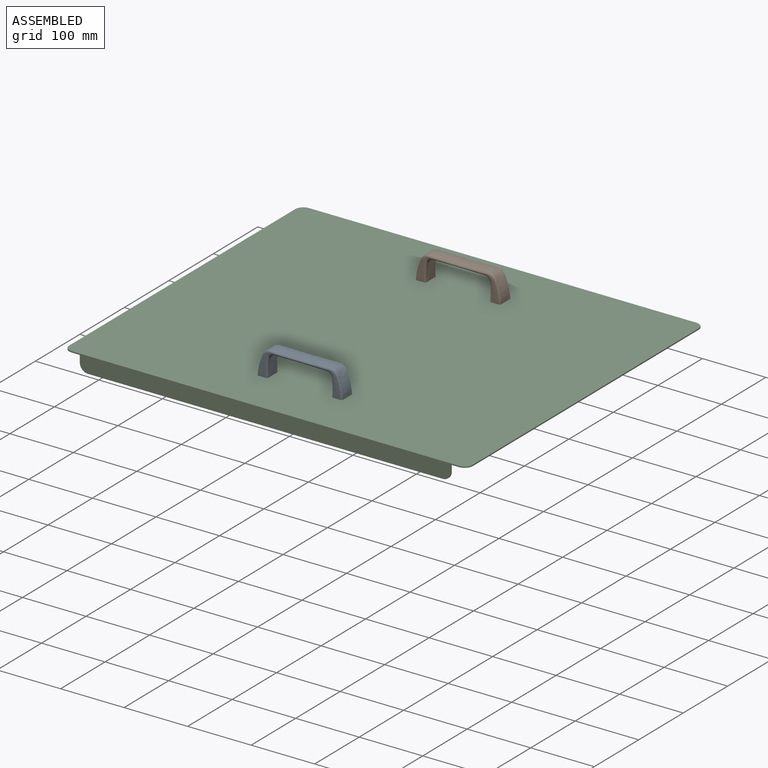
[diagram: assembled view]
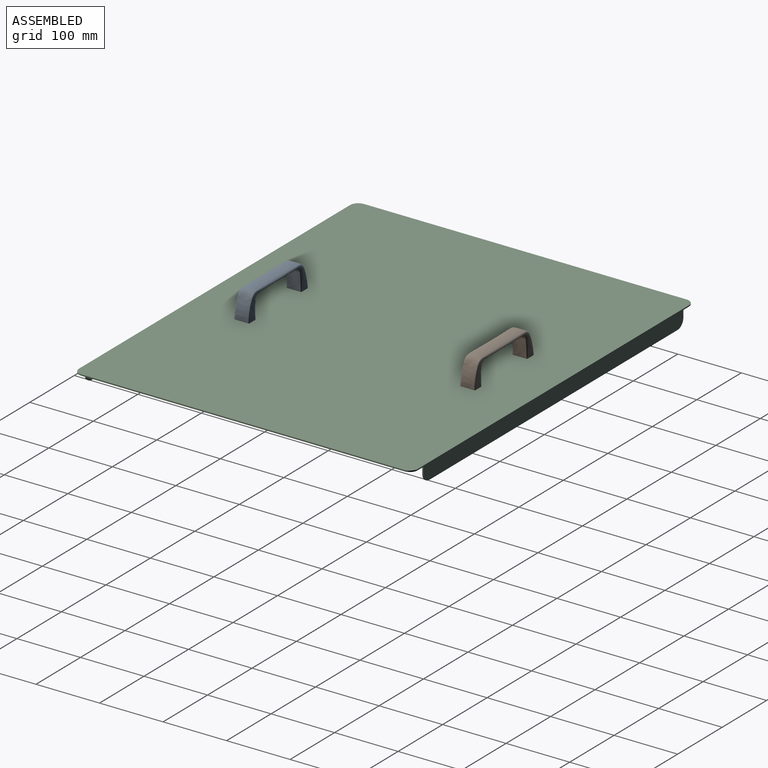
[diagram: assembled view, second angle]
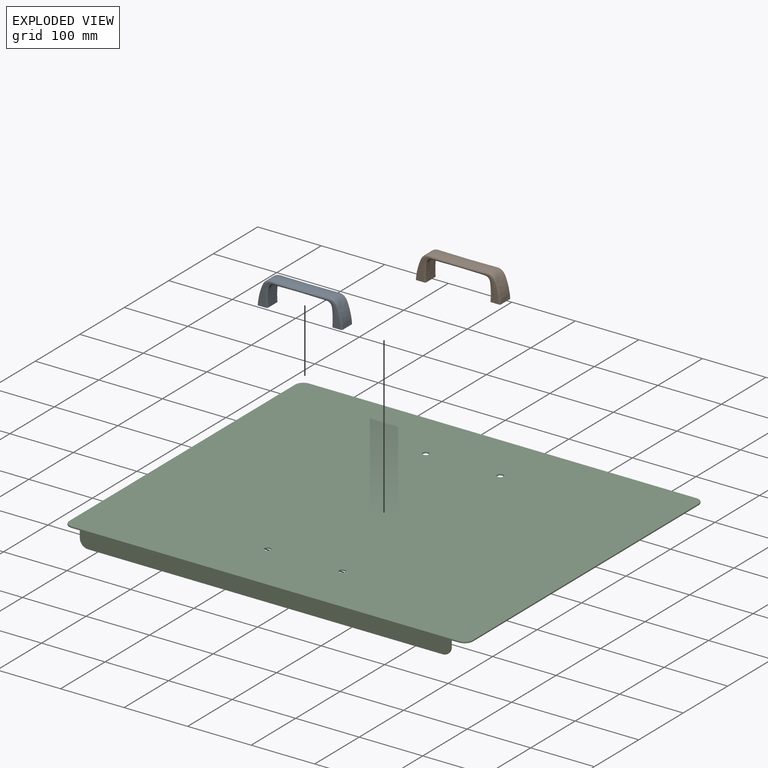
[diagram: exploded view]
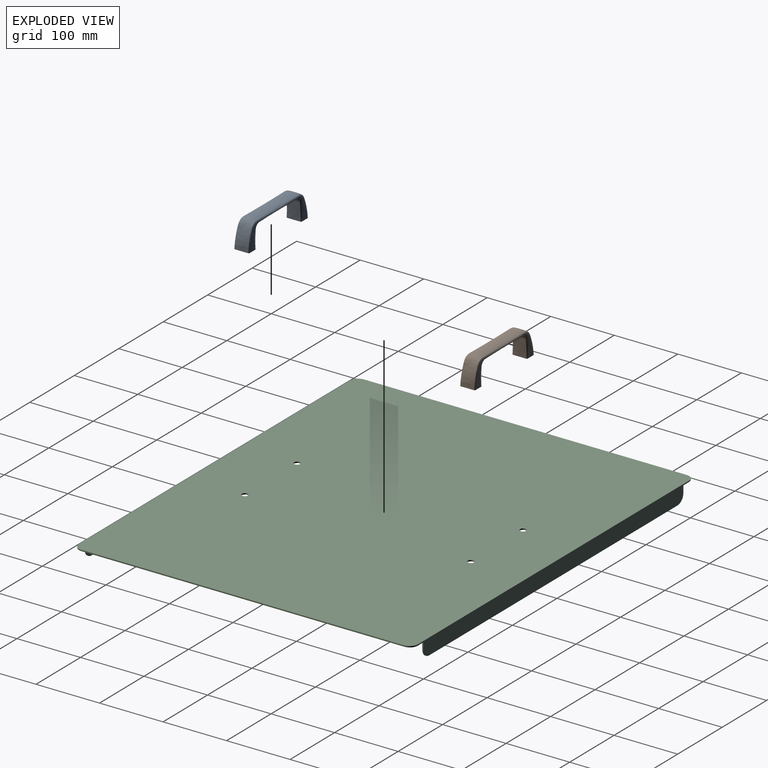
[diagram: exploded view, second angle]
ASSEMBLY  parts=3 mates=2
PART A: 16 faces, bbox 133.9x24.4x42.2 mm
  f0: cone r=3.97mm half-angle=45deg, axis (0,0,-1), area 14.8mm2, adj f5,f9,f13,f14,f15
  f1: cone r=3.97mm half-angle=45deg, axis (0,0,-1), area 14.8mm2, adj f4,f8,f10,f11,f12
  f2: bspline ~66.68x41.28mm, area 5306.5mm2, adj f3,f9
  f3: bspline ~66.68x41.28mm, area 5306.5mm2, adj f2,f8
  f4: cylinder r=3.97mm len=7.94mm, axis (0,0,-1), area 24.7mm2, adj f1,f7,f8,f10,f12
  f5: cylinder r=3.97mm len=7.94mm, axis (0,0,-1), area 24.7mm2, adj f0,f6,f9,f13,f15
  f6: plane 7.63x7.6mm, normal (0,0,-1), area 39mm2, adj f5,f13,f14,f15
  f7: plane 7.63x7.6mm, normal (0,0,-1), area 39mm2, adj f4,f10,f11,f12
  f8: plane 24x16.06mm, normal (0,0,-1), area 326.4mm2, adj f1,f3,f4
  f9: plane 24x16.06mm, normal (0,0,-1), area 326.4mm2, adj f0,f2,f5
  f10: bspline ~8.64x7.94mm, area 124.2mm2, adj f1,f4,f7,f11
  f11: cylinder r=3.05mm len=7.02mm, axis (0,0,1), area 16.6mm2, adj f1,f7,f10,f12
  f12: bspline ~8.82x7.94mm, area 122.2mm2, adj f1,f4,f7,f11
  f13: bspline ~8.64x7.94mm, area 124.2mm2, adj f0,f5,f6,f14
  f14: cylinder r=3.05mm len=7.02mm, axis (0,0,1), area 16.6mm2, adj f0,f6,f13,f15
  f15: bspline ~8.82x7.94mm, area 122.2mm2, adj f0,f5,f6,f14
PART B: same geometry as A
PART C: 26 faces, bbox 635x533.4x25.4 mm
  f0: plane 635x533.4mm, normal (0,0,1), area 338285.5mm2, adj f2,f3,f4,f5,f6,f7,f8,f9
  f1: plane 635x533.4mm, normal (0,0,-1), area 336059.7mm2, adj f2,f3,f4,f5,f6,f7,f8,f9
  f2: plane 508x1.91mm, normal (-1,0,0), area 967.7mm2, adj f0,f1,f3,f9
  f3: cylinder r=12.7mm len=12.7mm, axis (0,0,-1), area 38mm2, adj f0,f1,f2,f4
  f4: plane 609.6x25.4mm, normal (0,-1,0), area 14817.8mm2, adj f0,f1,f3,f5,f10,f11,f13,f20
  f5: cylinder r=12.7mm len=12.7mm, axis (0,0,-1), area 38mm2, adj f0,f1,f4,f6
  f6: plane 508x1.91mm, normal (1,0,0), area 967.7mm2, adj f0,f1,f5,f7
  f7: cylinder r=12.7mm len=12.7mm, axis (0,0,-1), area 38mm2, adj f0,f1,f6,f8
  f8: plane 609.6x25.4mm, normal (0,1,0), area 14817.8mm2, adj f0,f1,f7,f9,f14,f15,f17,f18
  f9: cylinder r=12.7mm len=12.7mm, axis (0,0,-1), area 38mm2, adj f0,f1,f2,f8
  f10: plane 10.8x1.91mm, normal (1,0,0), area 20.6mm2, adj f1,f4,f12,f21
  f11: plane 10.8x1.91mm, normal (-1,0,0), area 20.6mm2, adj f1,f4,f12,f20
  f12: plane 584.2x23.5mm, normal (0,1,0), area 13656.6mm2, adj f1,f10,f11,f13,f20,f21
  f13: plane 558.8x1.91mm, normal (0,0,-1), area 1064.5mm2, adj f4,f12,f20,f21
  f14: plane 10.8x1.91mm, normal (-1,0,0), area 20.6mm2, adj f1,f8,f16,f19
  f15: plane 10.8x1.91mm, normal (1,0,0), area 20.6mm2, adj f1,f8,f16,f18
  f16: plane 584.2x23.5mm, normal (0,-1,0), area 13656.6mm2, adj f1,f14,f15,f17,f18,f19
  f17: plane 558.8x1.91mm, normal (0,0,-1), area 1064.5mm2, adj f8,f16,f18,f19
  f18: cylinder r=12.7mm len=12.7mm, axis (0,1,0), area 38mm2, adj f8,f15,f16,f17
  f19: cylinder r=12.7mm len=12.7mm, axis (0,-1,0), area 38mm2, adj f8,f14,f16,f17
  f20: cylinder r=12.7mm len=12.7mm, axis (0,-1,0), area 38mm2, adj f4,f11,f12,f13
  f21: cylinder r=12.7mm len=12.7mm, axis (0,1,0), area 38mm2, adj f4,f10,f12,f13
  f22: cylinder r=4.76mm len=9.53mm, axis (0,0,1), area 57mm2, adj f0,f1
  f23: cylinder r=4.76mm len=9.53mm, axis (0,0,1), area 57mm2, adj f0,f1
  f24: cylinder r=4.76mm len=9.53mm, axis (0,0,1), area 57mm2, adj f0,f1
  f25: cylinder r=4.76mm len=9.53mm, axis (0,0,1), area 57mm2, adj f0,f1
PLACE A t=(-220.41,-164.35,121.71)mm
PLACE B t=(-220.41,191.25,121.71)mm
PLACE C t=(-220.41,13.45,119.8)mm
MATE fastened A.f11 <-> C.f23  axis (0,0,-1) through (-279.15,-164.35,121.71)mm
MATE fastened B.f14 <-> C.f25  axis (0,0,-1) through (-161.68,191.25,121.71)mm
